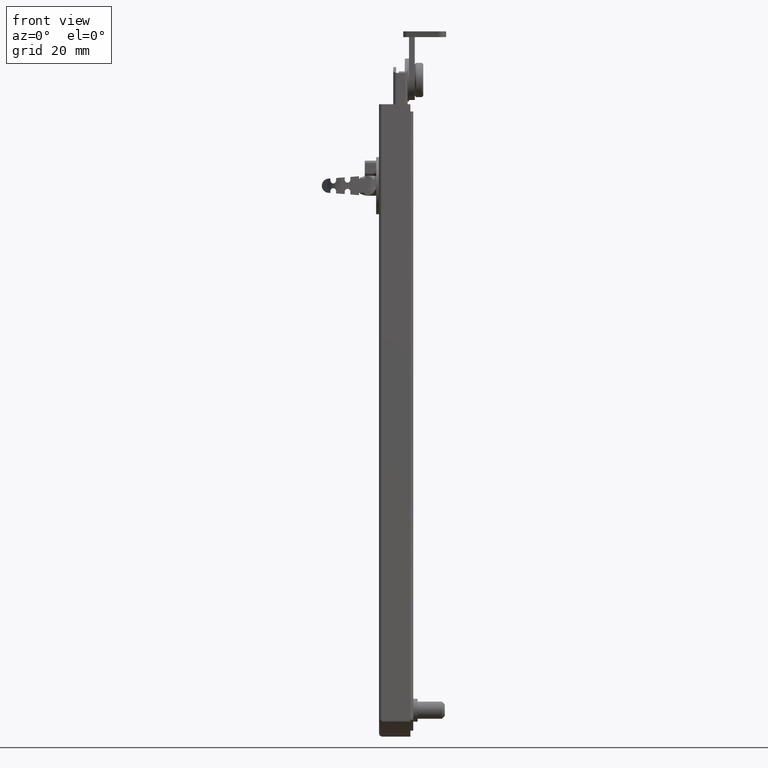
[diagram: clean part render]
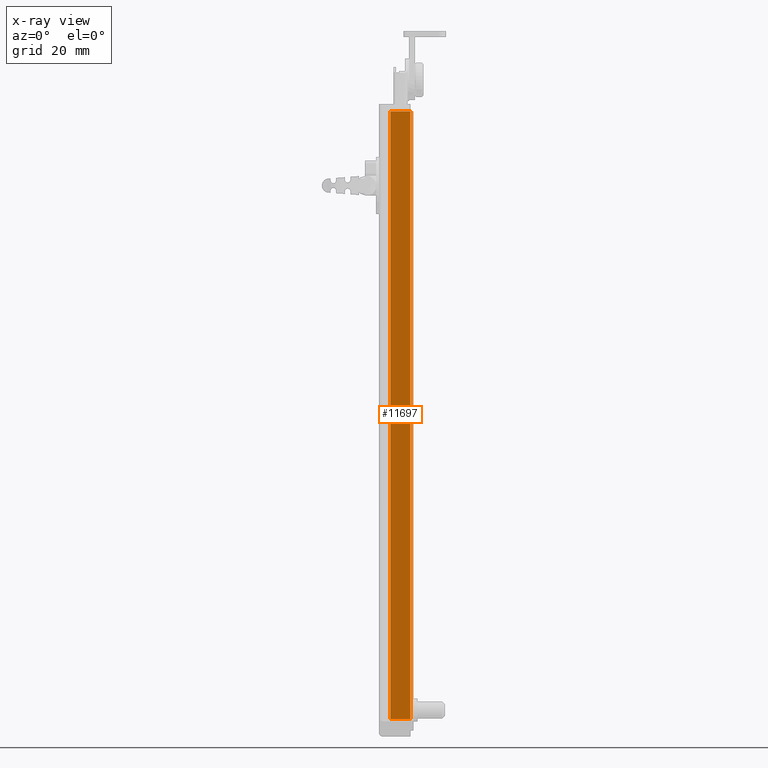
[diagram: x-ray — body ghosted, one internal face saturated and labeled with its STEP entity id]
A machine part, front view, then the same camera in x-ray: the body is ghosted and one INTERNAL B-rep face — a face not visible from any outside direction — is saturated and labeled: STEP entity #11697.
In plain terms, the highlighted face is a freeform B-spline surface patch.
Its self-contained STEP definition (entity closure, byte-faithful):
#11122=CARTESIAN_POINT('',(11.0,11.0,-3.091673999999900));
#11123=VERTEX_POINT('',#11122);
#11129=CARTESIAN_POINT('',(4.000000000000085,11.0,-3.091673999999880));
#11130=VERTEX_POINT('',#11129);
#11131=CARTESIAN_POINT('',(11.0,11.0,-3.091673999999900));
#11132=CARTESIAN_POINT('',(4.000000000000085,11.0,-3.091673999999880));
#11133=QUASI_UNIFORM_CURVE('',1,(#11131,#11132),.UNSPECIFIED.,.F.,.U.);
#11134=EDGE_CURVE('',#11123,#11130,#11133,.T.);
#11484=CARTESIAN_POINT('',(4.000000000000085,11.0,209.456345000000000));
#11485=VERTEX_POINT('',#11484);
#11491=CARTESIAN_POINT('',(11.0,11.0,209.456345000000000));
#11492=VERTEX_POINT('',#11491);
#11493=CARTESIAN_POINT('',(11.0,11.0,209.456345000000000));
#11494=CARTESIAN_POINT('',(4.000000000000085,11.0,209.456345000000000));
#11495=QUASI_UNIFORM_CURVE('',1,(#11493,#11494),.UNSPECIFIED.,.F.,.U.);
#11496=EDGE_CURVE('',#11492,#11485,#11495,.T.);
#11531=CARTESIAN_POINT('',(11.0,11.0,-3.091673999999900));
#11532=CARTESIAN_POINT('',(11.0,11.0,209.456345000000000));
#11533=QUASI_UNIFORM_CURVE('',1,(#11531,#11532),.UNSPECIFIED.,.F.,.U.);
#11534=EDGE_CURVE('',#11123,#11492,#11533,.T.);
#11675=CARTESIAN_POINT('',(4.000000000000085,11.0,-3.091673999999880));
#11676=CARTESIAN_POINT('',(4.000000000000085,11.0,209.456345000000000));
#11677=QUASI_UNIFORM_CURVE('',1,(#11675,#11676),.UNSPECIFIED.,.F.,.U.);
#11678=EDGE_CURVE('',#11130,#11485,#11677,.T.);
#11686=CARTESIAN_POINT('',(3.650350013567448,11.0,-13.708447137090580));
#11687=CARTESIAN_POINT('',(3.650350013567448,11.0,220.073123838072800));
#11688=CARTESIAN_POINT('',(11.349650174187270,11.0,-13.708447137090580));
#11689=CARTESIAN_POINT('',(11.349650174187270,11.0,220.073123838072800));
#11690=B_SPLINE_SURFACE_WITH_KNOTS('',1,1,((#11686,#11688),(#11687,#11689)),.UNSPECIFIED.,.F.,.F.,.U.,(2,2),(2,2),(0.0,233.781570975163390),(0.0,7.699300160619822),.UNSPECIFIED.);
#11691=ORIENTED_EDGE('',*,*,#11134,.F.);
#11692=ORIENTED_EDGE('',*,*,#11534,.T.);
#11693=ORIENTED_EDGE('',*,*,#11496,.T.);
#11694=ORIENTED_EDGE('',*,*,#11678,.F.);
#11695=EDGE_LOOP('',(#11691,#11692,#11693,#11694));
#11696=FACE_OUTER_BOUND('',#11695,.T.);
#11697=ADVANCED_FACE('',(#11696),#11690,.F.);